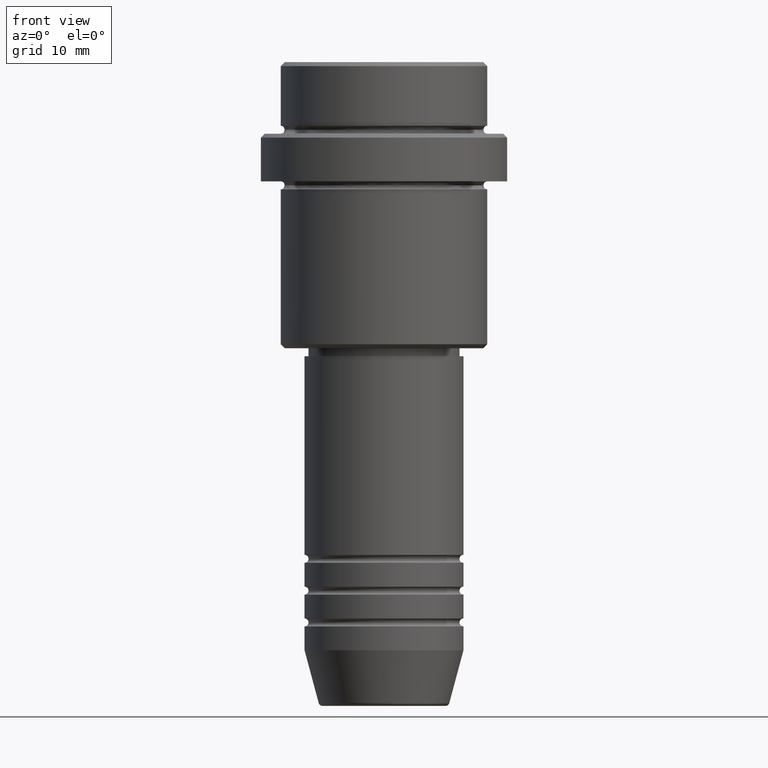
[diagram: clean part render]
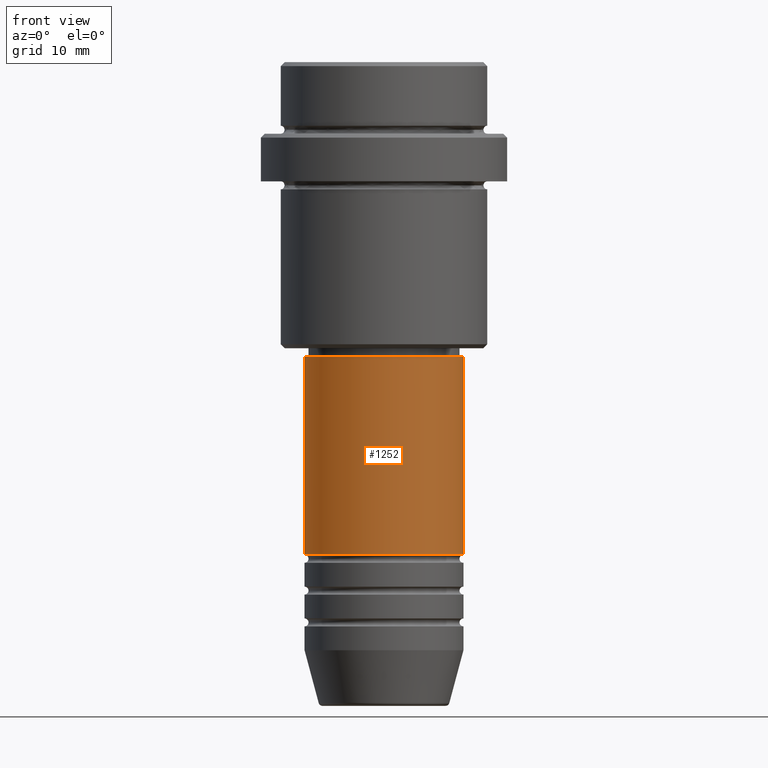
[diagram: same view with one face highlighted and labeled with its STEP entity id]
A machine part, front view. The second image highlights one B-rep face of the part: STEP entity #1252.
In plain terms, the highlighted cylindrical surface (partial cylindrical patch) has radius 10 mm, axis along (-0, -0, 1).
Its self-contained STEP definition (entity closure, byte-faithful):
#33 = ORIENTED_EDGE ( 'NONE', *, *, #245, .T. ) ;
#161 = VECTOR ( 'NONE', #419, 1000.000000000000000 ) ;
#216 = DIRECTION ( 'NONE',  ( -0.000000000000000000, -0.000000000000000000, 1.000000000000000000 ) ) ;
#245 = EDGE_CURVE ( 'NONE', #1341, #1327, #701, .T. ) ;
#313 = DIRECTION ( 'NONE',  ( -0.000000000000000000, -0.000000000000000000, 1.000000000000000000 ) ) ;
#375 = CIRCLE ( 'NONE', #827, 10.00000000000000178 ) ;
#379 = ORIENTED_EDGE ( 'NONE', *, *, #1168, .F. ) ;
#388 = CARTESIAN_POINT ( 'NONE',  ( 0.000000000000000000, 0.000000000000000000, -61.99999999999987921 ) ) ;
#419 = DIRECTION ( 'NONE',  ( -0.000000000000000000, -0.000000000000000000, 1.000000000000000000 ) ) ;
#434 = CARTESIAN_POINT ( 'NONE',  ( 10.00000000000000000, 0.000000000000000000, -61.99999999999987921 ) ) ;
#506 = LINE ( 'NONE', #1411, #161 ) ;
#534 = FACE_OUTER_BOUND ( 'NONE', #1235, .T. ) ;
#563 = CARTESIAN_POINT ( 'NONE',  ( 10.00000000000000178, 0.000000000000000000, -37.00000000000000000 ) ) ;
#602 = DIRECTION ( 'NONE',  ( -0.000000000000000000, -0.000000000000000000, 1.000000000000000000 ) ) ;
#641 = ORIENTED_EDGE ( 'NONE', *, *, #712, .F. ) ;
#670 = DIRECTION ( 'NONE',  ( -0.000000000000000000, -0.000000000000000000, 1.000000000000000000 ) ) ;
#701 = CIRCLE ( 'NONE', #1029, 10.00000000000000000 ) ;
#703 = VERTEX_POINT ( 'NONE', #837 ) ;
#712 = EDGE_CURVE ( 'NONE', #1341, #703, #969, .T. ) ;
#825 = CARTESIAN_POINT ( 'NONE',  ( 0.000000000000000000, 0.000000000000000000, -37.00000000000000000 ) ) ;
#827 = AXIS2_PLACEMENT_3D ( 'NONE', #825, #602, #946 ) ;
#837 = CARTESIAN_POINT ( 'NONE',  ( -10.00000000000000178, 1.224646799147353454E-15, -37.00000000000000000 ) ) ;
#852 = ORIENTED_EDGE ( 'NONE', *, *, #1137, .T. ) ;
#878 = CARTESIAN_POINT ( 'NONE',  ( -10.00000000000000000, 1.224646799147353256E-15, -61.99999999999987921 ) ) ;
#879 = VERTEX_POINT ( 'NONE', #563 ) ;
#896 = AXIS2_PLACEMENT_3D ( 'NONE', #1231, #216, #1217 ) ;
#897 = DIRECTION ( 'NONE',  ( 1.000000000000000000, 0.000000000000000000, 0.000000000000000000 ) ) ;
#946 = DIRECTION ( 'NONE',  ( 1.000000000000000000, 0.000000000000000000, 0.000000000000000000 ) ) ;
#966 = CYLINDRICAL_SURFACE ( 'NONE', #896, 10.00000000000000178 ) ;
#969 = LINE ( 'NONE', #1306, #1326 ) ;
#1029 = AXIS2_PLACEMENT_3D ( 'NONE', #388, #670, #897 ) ;
#1137 = EDGE_CURVE ( 'NONE', #1327, #879, #506, .T. ) ;
#1168 = EDGE_CURVE ( 'NONE', #703, #879, #375, .T. ) ;
#1217 = DIRECTION ( 'NONE',  ( 1.000000000000000000, 0.000000000000000000, 0.000000000000000000 ) ) ;
#1231 = CARTESIAN_POINT ( 'NONE',  ( 0.000000000000000000, 0.000000000000000000, 0.000000000000000000 ) ) ;
#1235 = EDGE_LOOP ( 'NONE', ( #641, #33, #852, #379 ) ) ;
#1252 = ADVANCED_FACE ( 'NONE', ( #534 ), #966, .T. ) ;
#1306 = CARTESIAN_POINT ( 'NONE',  ( -10.00000000000000178, 1.224646799147353454E-15, 0.000000000000000000 ) ) ;
#1326 = VECTOR ( 'NONE', #313, 1000.000000000000000 ) ;
#1327 = VERTEX_POINT ( 'NONE', #434 ) ;
#1341 = VERTEX_POINT ( 'NONE', #878 ) ;
#1411 = CARTESIAN_POINT ( 'NONE',  ( 10.00000000000000178, 0.000000000000000000, 0.000000000000000000 ) ) ;